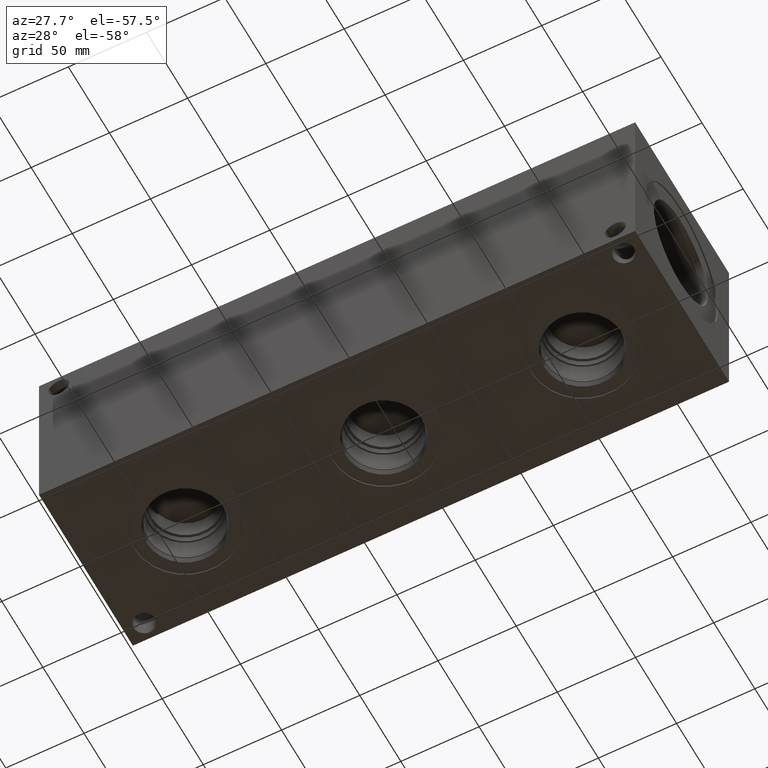
[diagram: clean part render]
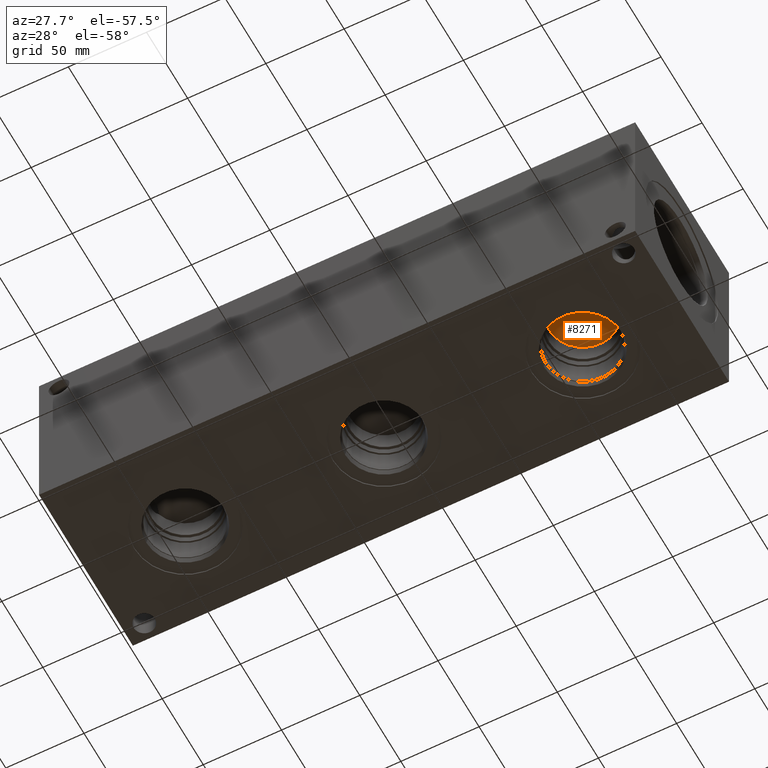
[diagram: same view with one face highlighted and labeled with its STEP entity id]
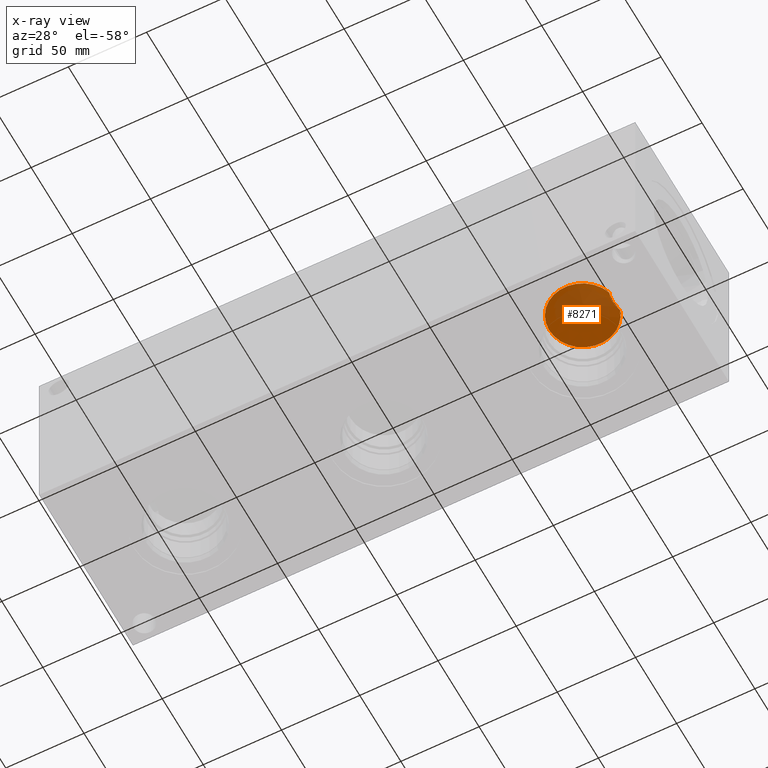
[diagram: x-ray of the same camera — body ghosted, the highlighted face saturated]
A machine part, auxiliary view. The second image highlights one B-rep face of the part: STEP entity #8271.
The next image is the same camera in x-ray: the body ghosted, the highlighted face saturated — about 33% of this face is hidden behind the body in this view.
In plain terms, the highlighted conical surface has half-angle 60 deg.
Its self-contained STEP definition (entity closure, byte-faithful):
#28=CONICAL_SURFACE('',#8651,10.7188,1.0471975511966);
#140=CIRCLE('',#8649,21.4376);
#141=CIRCLE('',#8650,21.4376);
#530=B_SPLINE_CURVE_WITH_KNOTS('',3,(#13890,#13891,#13892,#13893,#13894,
#13895,#13896,#13897,#13898,#13899,#13900,#13901,#13902,#13903),
 .UNSPECIFIED.,.F.,.F.,(4,2,2,2,2,2,4),(2.20463967605849,2.21515036335288,
2.58434209057836,2.95353381780384,3.32272554502932,3.69191727225479,3.70242795954919),
 .UNSPECIFIED.);
#972=FACE_OUTER_BOUND('',#1430,.T.);
#1430=EDGE_LOOP('',(#6912,#6913,#6914,#6915,#6916));
#2252=LINE('',#13905,#3033);
#3033=VECTOR('',#10138,10.7188);
#3745=VERTEX_POINT('',#13869);
#3746=VERTEX_POINT('',#13871);
#3747=VERTEX_POINT('',#13873);
#3748=VERTEX_POINT('',#13904);
#4834=EDGE_CURVE('',#3746,#3745,#140,.T.);
#4836=EDGE_CURVE('',#3745,#3747,#141,.T.);
#4837=EDGE_CURVE('',#3746,#3747,#530,.T.);
#4838=EDGE_CURVE('',#3745,#3748,#2252,.T.);
#6912=ORIENTED_EDGE('',*,*,#4837,.F.);
#6913=ORIENTED_EDGE('',*,*,#4834,.T.);
#6914=ORIENTED_EDGE('',*,*,#4838,.T.);
#6915=ORIENTED_EDGE('',*,*,#4838,.F.);
#6916=ORIENTED_EDGE('',*,*,#4836,.T.);
#8271=ADVANCED_FACE('',(#972),#28,.F.);
#8649=AXIS2_PLACEMENT_3D('',#13872,#10132,#10133);
#8650=AXIS2_PLACEMENT_3D('',#13888,#10134,#10135);
#8651=AXIS2_PLACEMENT_3D('',#13889,#10136,#10137);
#10132=DIRECTION('center_axis',(0.,0.,-1.));
#10133=DIRECTION('ref_axis',(1.,0.,0.));
#10134=DIRECTION('center_axis',(0.,0.,-1.));
#10135=DIRECTION('ref_axis',(1.,0.,0.));
#10136=DIRECTION('center_axis',(0.,0.,-1.));
#10137=DIRECTION('ref_axis',(1.,0.,0.));
#10138=DIRECTION('',(0.866025403784439,-1.06057523872491E-16,0.5));
#13869=CARTESIAN_POINT('',(296.0624,57.15,36.76677));
#13871=CARTESIAN_POINT('',(337.872115487403,50.4756008264469,36.76677));
#13872=CARTESIAN_POINT('Origin',(317.5,57.15,36.76677));
#13873=CARTESIAN_POINT('',(337.872115487403,63.8243991735531,36.76677));
#13888=CARTESIAN_POINT('Origin',(317.5,57.15,36.76677));
#13889=CARTESIAN_POINT('Origin',(317.5,57.15,42.9552720653898));
#13890=CARTESIAN_POINT('Ctrl Pts',(337.872115487403,50.4756008264469,36.76677));
#13891=CARTESIAN_POINT('Ctrl Pts',(337.860577691872,50.5045793462237,36.7783092359071));
#13892=CARTESIAN_POINT('Ctrl Pts',(337.849085113838,50.5335737654038,36.7898032521445));
#13893=CARTESIAN_POINT('Ctrl Pts',(337.435548757377,51.581583005659,37.203391482789));
#13894=CARTESIAN_POINT('Ctrl Pts',(337.088473297214,52.6169063126864,37.5505149677141));
#13895=CARTESIAN_POINT('Ctrl Pts',(336.579196509804,54.7857671471644,38.0598656157151));
#13896=CARTESIAN_POINT('Ctrl Pts',(336.417114735056,55.9193609092484,38.2219728462037));
#13897=CARTESIAN_POINT('Ctrl Pts',(336.417114735056,58.3806390907516,38.2219728462037));
#13898=CARTESIAN_POINT('Ctrl Pts',(336.579196509804,59.5142328528356,38.0598656157151));
#13899=CARTESIAN_POINT('Ctrl Pts',(337.088473297214,61.6830936873136,37.5505149677141));
#13900=CARTESIAN_POINT('Ctrl Pts',(337.435548757377,62.718416994341,37.203391482789));
#13901=CARTESIAN_POINT('Ctrl Pts',(337.849085113838,63.7664262345962,36.7898032521445));
#13902=CARTESIAN_POINT('Ctrl Pts',(337.860577691872,63.7954206537763,36.7783092359071));
#13903=CARTESIAN_POINT('Ctrl Pts',(337.872115487403,63.8243991735531,36.76677));
#13904=CARTESIAN_POINT('',(317.5,57.15,49.1437741307795));
#13905=CARTESIAN_POINT('',(306.7812,57.15,42.9552720653898));